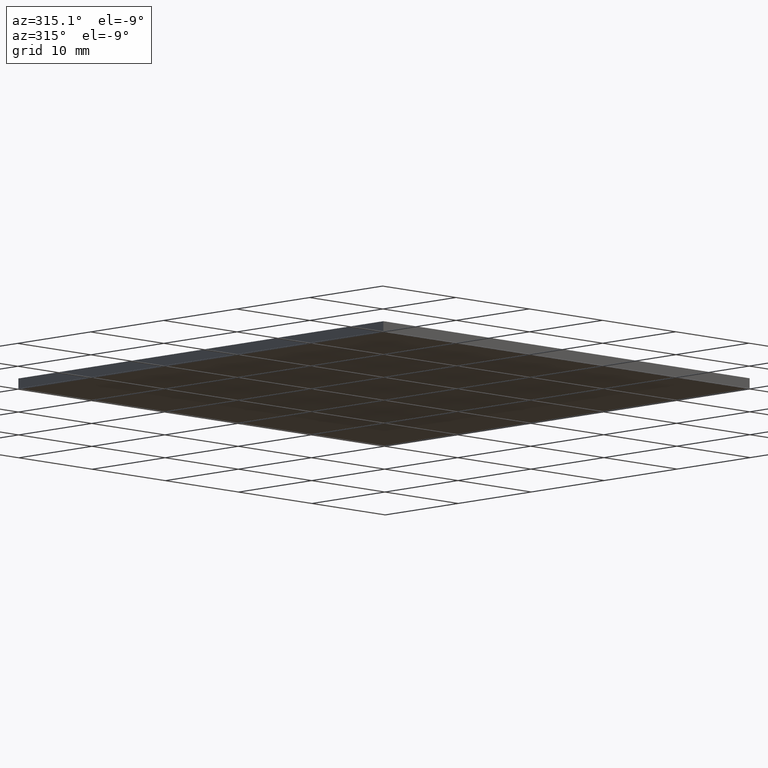
[diagram: clean part render]
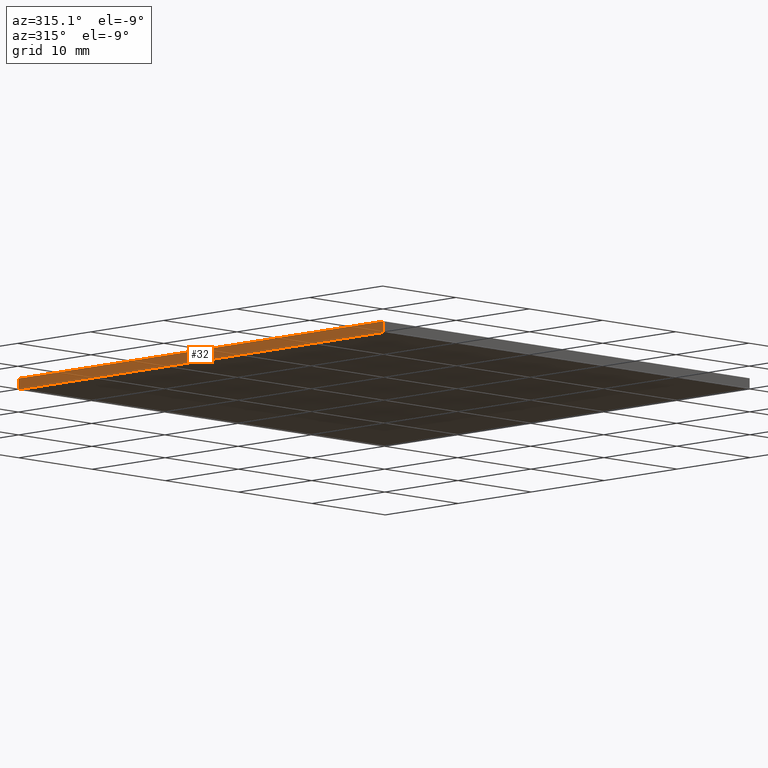
[diagram: same view with one face highlighted and labeled with its STEP entity id]
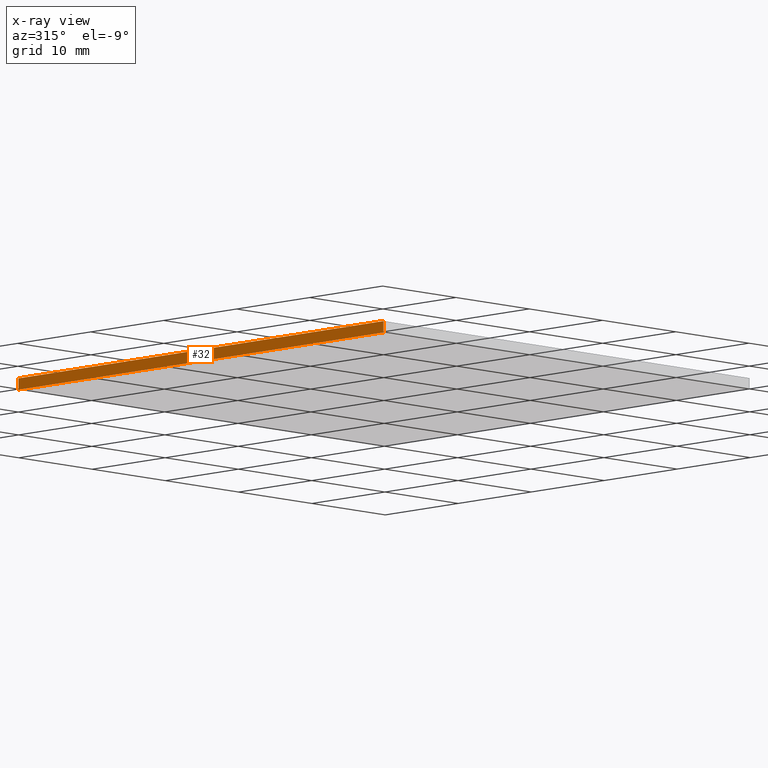
[diagram: x-ray of the same camera — body ghosted, the highlighted face saturated]
A machine part, auxiliary view. The second image highlights one B-rep face of the part: STEP entity #32.
The next image is the same camera in x-ray: the body ghosted, the highlighted face saturated — about 0% of this face is hidden behind the body in this view.
In plain terms, the highlighted planar face has unit normal (1, 0, -0).
Its self-contained STEP definition (entity closure, byte-faithful):
#3 = AXIS2_PLACEMENT_3D ( 'NONE', #81, #159, #256 ) ;
#10 = VECTOR ( 'NONE', #69, 1000.000000000000000 ) ;
#30 = PLANE ( 'NONE',  #3 ) ;
#32 = ADVANCED_FACE ( 'NONE', ( #65 ), #30, .F. ) ;
#35 = ORIENTED_EDGE ( 'NONE', *, *, #281, .T. ) ;
#40 = CARTESIAN_POINT ( 'NONE',  ( -25.00000000000000000, -25.00000000000000000, 0.0000000000000000000 ) ) ;
#47 = CARTESIAN_POINT ( 'NONE',  ( -25.00000000000000000, 25.00000000000000000, 1.100000000000000100 ) ) ;
#57 = EDGE_CURVE ( 'NONE', #275, #101, #303, .T. ) ;
#60 = LINE ( 'NONE', #204, #75 ) ;
#62 = EDGE_LOOP ( 'NONE', ( #123, #253, #265, #35 ) ) ;
#65 = FACE_OUTER_BOUND ( 'NONE', #62, .T. ) ;
#67 = CARTESIAN_POINT ( 'NONE',  ( -25.00000000000000000, 25.00000000000000000, 1.100000000000000100 ) ) ;
#69 = DIRECTION ( 'NONE',  ( 0.0000000000000000000, -1.000000000000000000, 0.0000000000000000000 ) ) ;
#71 = LINE ( 'NONE', #147, #10 ) ;
#72 = EDGE_CURVE ( 'NONE', #101, #139, #60, .T. ) ;
#75 = VECTOR ( 'NONE', #160, 1000.000000000000000 ) ;
#81 = CARTESIAN_POINT ( 'NONE',  ( -25.00000000000000000, 25.00000000000000000, 1.100000000000000100 ) ) ;
#101 = VERTEX_POINT ( 'NONE', #184 ) ;
#115 = CARTESIAN_POINT ( 'NONE',  ( -25.00000000000000000, 25.00000000000000000, 0.0000000000000000000 ) ) ;
#123 = ORIENTED_EDGE ( 'NONE', *, *, #247, .T. ) ;
#139 = VERTEX_POINT ( 'NONE', #40 ) ;
#147 = CARTESIAN_POINT ( 'NONE',  ( -25.00000000000000000, 25.00000000000000000, 0.0000000000000000000 ) ) ;
#159 = DIRECTION ( 'NONE',  ( 1.000000000000000000, 0.0000000000000000000, -0.0000000000000000000 ) ) ;
#160 = DIRECTION ( 'NONE',  ( -0.0000000000000000000, -0.0000000000000000000, -1.000000000000000000 ) ) ;
#175 = VECTOR ( 'NONE', #290, 1000.000000000000000 ) ;
#182 = CARTESIAN_POINT ( 'NONE',  ( -25.00000000000000000, 25.00000000000000000, 1.100000000000000100 ) ) ;
#184 = CARTESIAN_POINT ( 'NONE',  ( -25.00000000000000000, -25.00000000000000000, 1.100000000000000100 ) ) ;
#204 = CARTESIAN_POINT ( 'NONE',  ( -25.00000000000000000, -25.00000000000000000, 1.100000000000000100 ) ) ;
#209 = VERTEX_POINT ( 'NONE', #115 ) ;
#243 = VECTOR ( 'NONE', #250, 1000.000000000000000 ) ;
#247 = EDGE_CURVE ( 'NONE', #209, #139, #71, .T. ) ;
#250 = DIRECTION ( 'NONE',  ( 0.0000000000000000000, -1.000000000000000000, 0.0000000000000000000 ) ) ;
#253 = ORIENTED_EDGE ( 'NONE', *, *, #72, .F. ) ;
#256 = DIRECTION ( 'NONE',  ( -0.0000000000000000000, 0.0000000000000000000, -1.000000000000000000 ) ) ;
#260 = LINE ( 'NONE', #67, #175 ) ;
#265 = ORIENTED_EDGE ( 'NONE', *, *, #57, .F. ) ;
#275 = VERTEX_POINT ( 'NONE', #47 ) ;
#281 = EDGE_CURVE ( 'NONE', #275, #209, #260, .T. ) ;
#290 = DIRECTION ( 'NONE',  ( -0.0000000000000000000, -0.0000000000000000000, -1.000000000000000000 ) ) ;
#303 = LINE ( 'NONE', #182, #243 ) ;